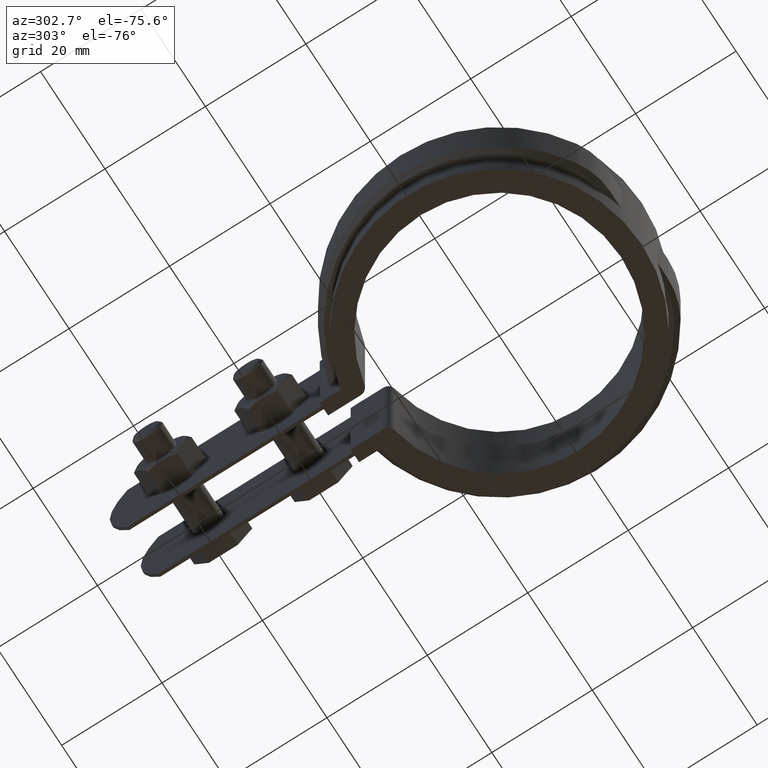
[diagram: clean part render]
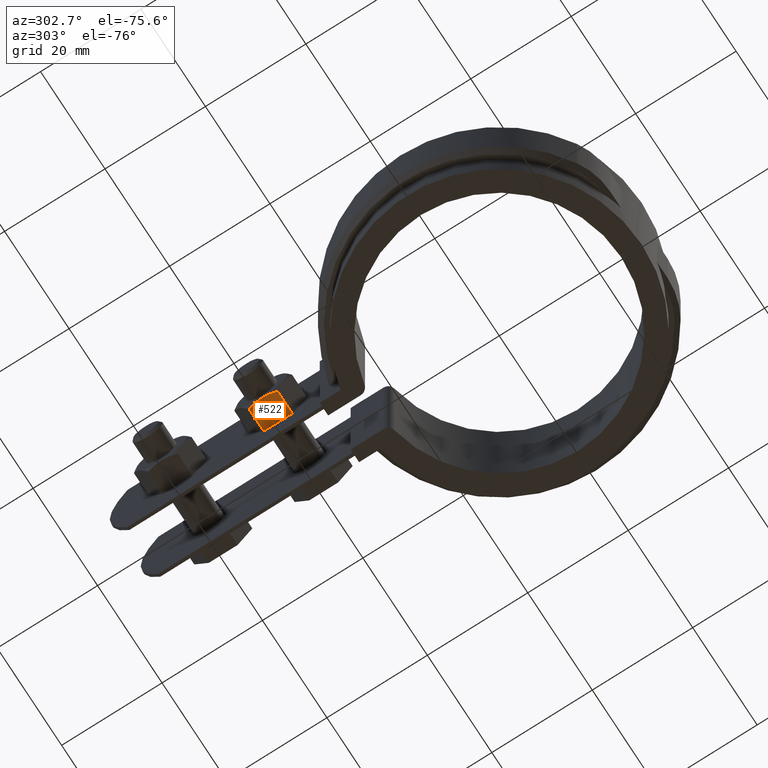
[diagram: same view with one face highlighted and labeled with its STEP entity id]
A machine part, auxiliary view. The second image highlights one B-rep face of the part: STEP entity #522.
In plain terms, the highlighted planar face has unit normal (0, 0, 1).
Its self-contained STEP definition (entity closure, byte-faithful):
#522 = ADVANCED_FACE( '', ( #973 ), #974, .F. );
#973 = FACE_OUTER_BOUND( '', #2063, .T. );
#974 = PLANE( '', #2064 );
#2063 = EDGE_LOOP( '', ( #5109, #5110, #5111, #5112, #5113 ) );
#2064 = AXIS2_PLACEMENT_3D( '', #5114, #5115, #5116 );
#5109 = ORIENTED_EDGE( '', *, *, #5738, .F. );
#5110 = ORIENTED_EDGE( '', *, *, #5739, .F. );
#5111 = ORIENTED_EDGE( '', *, *, #5737, .F. );
#5112 = ORIENTED_EDGE( '', *, *, #5717, .F. );
#5113 = ORIENTED_EDGE( '', *, *, #5740, .F. );
#5114 = CARTESIAN_POINT( '', ( -5.10000000000001, 37.9177758096595, -17.5000000000000 ) );
#5115 = DIRECTION( '', ( 0.000000000000000, 0.000000000000000, 1.00000000000000 ) );
#5116 = DIRECTION( '', ( 1.00000000000000, 0.000000000000000, 0.000000000000000 ) );
#5717 = EDGE_CURVE( '', #6665, #6667, #6668, .T. );
#5737 = EDGE_CURVE( '', #6667, #6695, #6697, .F. );
#5738 = EDGE_CURVE( '', #6635, #6698, #6699, .F. );
#5739 = EDGE_CURVE( '', #6695, #6635, #6700, .F. );
#5740 = EDGE_CURVE( '', #6698, #6665, #6701, .T. );
#6635 = VERTEX_POINT( '', #10241 );
#6665 = VERTEX_POINT( '', #10286 );
#6667 = VERTEX_POINT( '', #10288 );
#6668 = LINE( '', #10289, #10290 );
#6695 = VERTEX_POINT( '', #10351 );
#6697 = LINE( '', #10353, #10354 );
#6698 = VERTEX_POINT( '', #10355 );
#6699 = B_SPLINE_CURVE_WITH_KNOTS( '', 3, ( #10356, #10357, #10358, #10359, #10360, #10361 ), .UNSPECIFIED., .F., .F., ( 4, 2, 4 ), ( 0.00519725619092115, 0.00663292719463914, 0.00806859819835713 ), .UNSPECIFIED. );
#6700 = B_SPLINE_CURVE_WITH_KNOTS( '', 3, ( #10362, #10363, #10364, #10365, #10366, #10367 ), .UNSPECIFIED., .F., .F., ( 4, 2, 4 ), ( 0.00806859819835713, 0.00950497228174471, 0.0109413463651323 ), .UNSPECIFIED. );
#6701 = LINE( '', #10368, #10369 );
#10241 = CARTESIAN_POINT( '', ( -10.1000000000000, 40.8045271556076, -17.5000000000000 ) );
#10286 = CARTESIAN_POINT( '', ( -5.10000000000001, 37.9650729827075, -17.5000000000000 ) );
#10288 = CARTESIAN_POINT( '', ( -5.10000000000001, 43.6439813285078, -17.5000000000000 ) );
#10289 = CARTESIAN_POINT( '', ( -5.10000000000001, 46.5545271556076, -17.5000000000000 ) );
#10290 = VECTOR( '', #11011, 1000.00000000000 );
#10351 = CARTESIAN_POINT( '', ( -9.66698729810779, 43.6439813285078, -17.5000000000000 ) );
#10353 = CARTESIAN_POINT( '', ( -5.10000000000001, 43.6439813285078, -17.5000000000000 ) );
#10354 = VECTOR( '', #11036, 1000.00000000000 );
#10355 = CARTESIAN_POINT( '', ( -9.66698729810779, 37.9650729827075, -17.5000000000000 ) );
#10356 = CARTESIAN_POINT( '', ( -9.66698729810781, 37.9650729827075, -17.5000000000000 ) );
#10357 = CARTESIAN_POINT( '', ( -9.79876289079438, 38.4272715409644, -17.5000000000000 ) );
#10358 = CARTESIAN_POINT( '', ( -9.90898038823823, 38.9004071900923, -17.5000000000000 ) );
#10359 = CARTESIAN_POINT( '', ( -10.0594851340825, 39.8483299666886, -17.5000000000000 ) );
#10360 = CARTESIAN_POINT( '', ( -10.1000000000000, 40.3249046177361, -17.5000000000000 ) );
#10361 = CARTESIAN_POINT( '', ( -10.1000000000000, 40.8045271556076, -17.5000000000000 ) );
#10362 = CARTESIAN_POINT( '', ( -10.1000000000000, 40.8045271556076, -17.5000000000000 ) );
#10363 = CARTESIAN_POINT( '', ( -10.1000000000000, 41.2843845751857, -17.5000000000000 ) );
#10364 = CARTESIAN_POINT( '', ( -10.0583898630217, 41.7707663936757, -17.5000000000000 ) );
#10365 = CARTESIAN_POINT( '', ( -9.90676947593068, 42.7193588192349, -17.5000000000000 ) );
#10366 = CARTESIAN_POINT( '', ( -9.79793774197779, 43.1846769525921, -17.5000000000000 ) );
#10367 = CARTESIAN_POINT( '', ( -9.66698729810781, 43.6439813285078, -17.5000000000000 ) );
#10368 = CARTESIAN_POINT( '', ( -5.10000000000001, 37.9650729827075, -17.5000000000000 ) );
#10369 = VECTOR( '', #11037, 1000.00000000000 );
#11011 = DIRECTION( '', ( 0.000000000000000, 1.00000000000000, 0.000000000000000 ) );
#11036 = DIRECTION( '', ( 1.00000000000000, 0.000000000000000, 0.000000000000000 ) );
#11037 = DIRECTION( '', ( 1.00000000000000, 0.000000000000000, 0.000000000000000 ) );